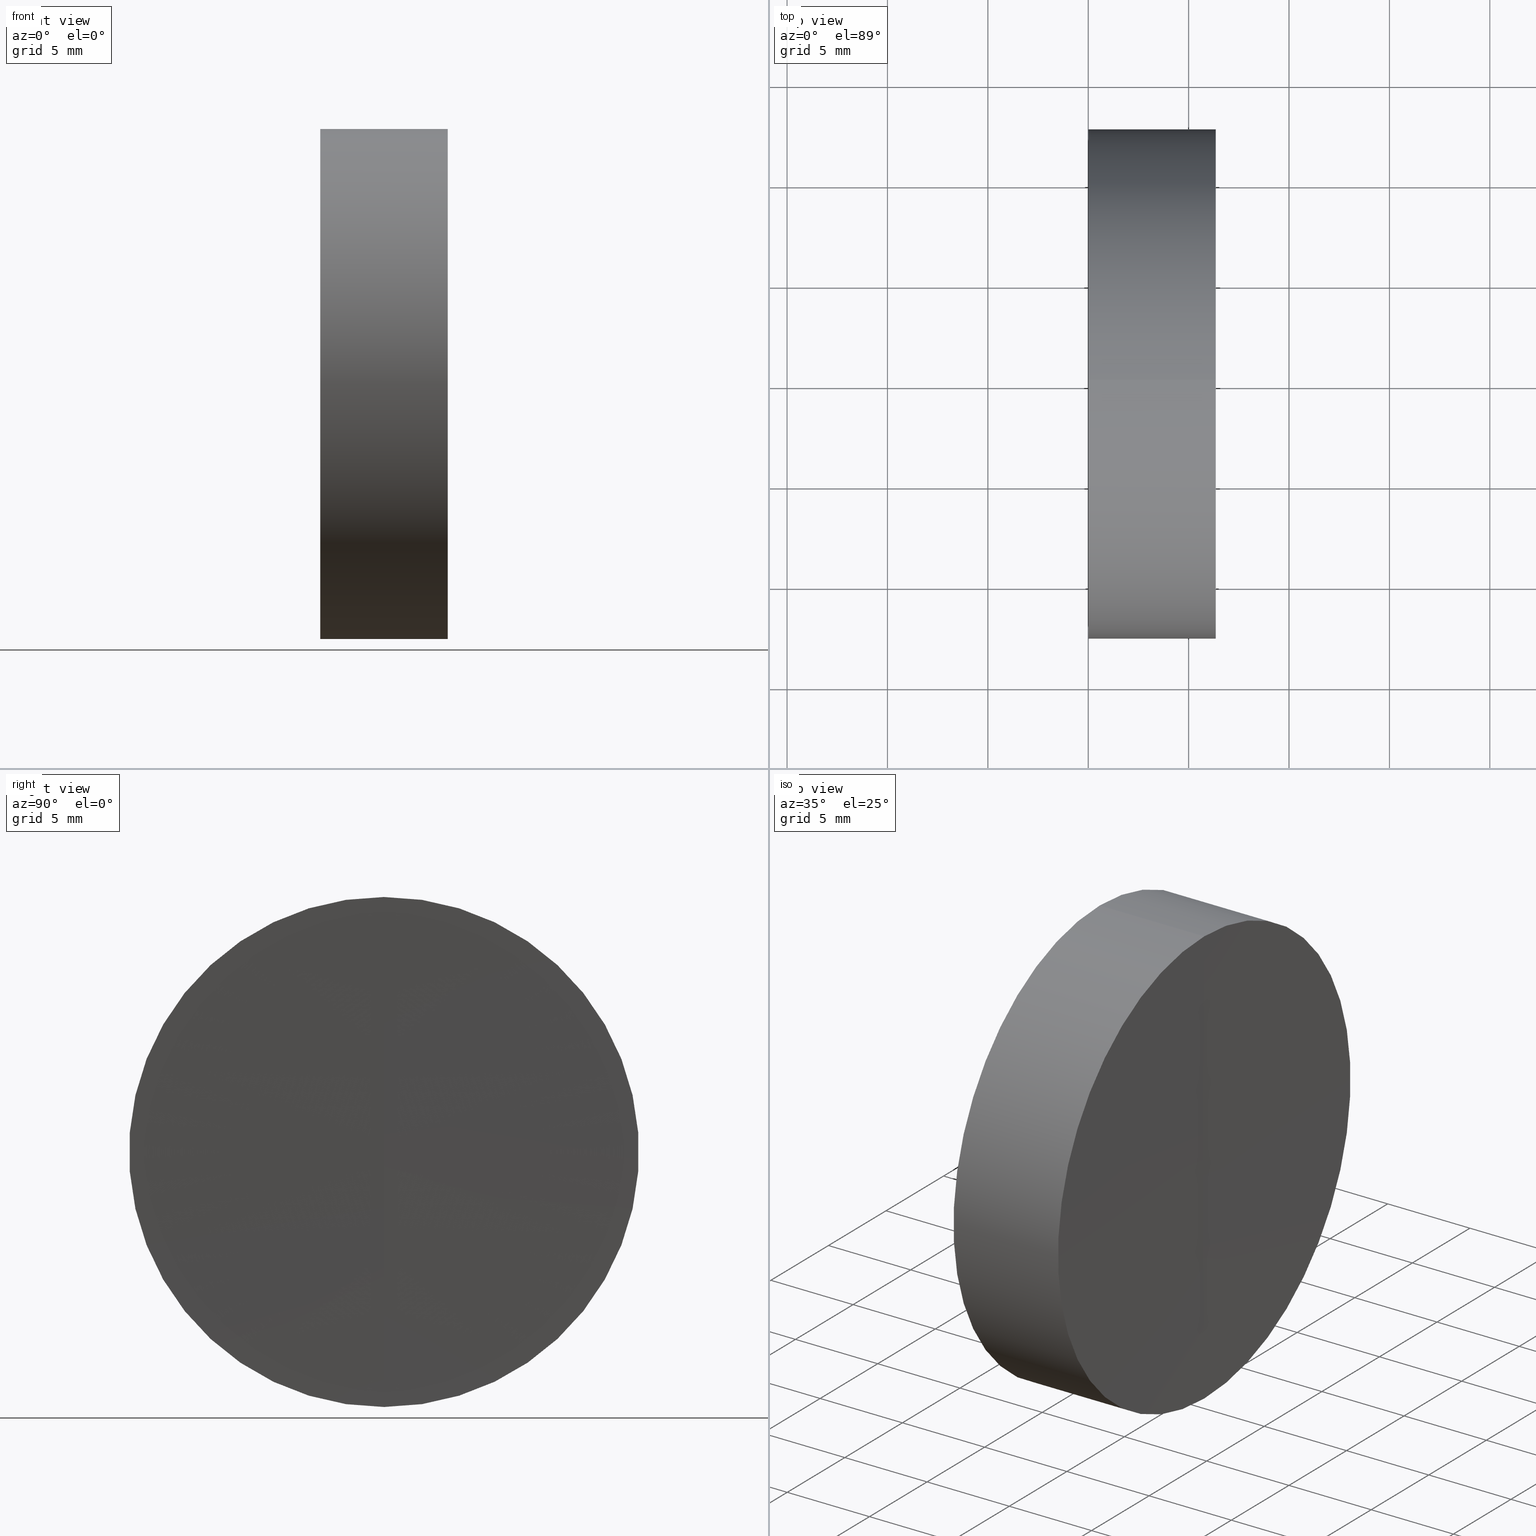
[diagram: canonical four-view strip — front | top / right | iso, engineering-drawing reading convention]
A machine part, canonical four-view strip (front | top / right | iso — engineering-drawing reading convention). The complete STEP part file that produces these views, byte-faithful:
ISO-10303-21;
HEADER;
FILE_DESCRIPTION (( 'STEP AP214' ),
    '1' );
FILE_NAME ('432519.STEP',
    '2019-08-27T01:35:27',
    ( 'user' ),
    ( '΢���й�' ),
    'SwSTEP 2.0',
    'SolidWorks 2016',
    '' );
FILE_SCHEMA (( 'AUTOMOTIVE_DESIGN' ));
ENDSEC;

DATA;
#1 = DIRECTION ( 'NONE',  ( 0.0000000000000000000, 0.0000000000000000000, 1.000000000000000000 ) ) ;
#2 = DIRECTION ( 'NONE',  ( -1.000000000000000000, -0.0000000000000000000, -0.0000000000000000000 ) ) ;
#3 =( LENGTH_UNIT ( ) NAMED_UNIT ( * ) SI_UNIT ( .MILLI., .METRE. ) );
#4 = CARTESIAN_POINT ( 'NONE',  ( 1006.270000000000000, 0.0000000000000000000, 0.0000000000000000000 ) ) ;
#5 = AXIS2_PLACEMENT_3D ( 'NONE', #32, #71, #152 ) ;
#6 = AXIS2_PLACEMENT_3D ( 'NONE', #4, #93, #102 ) ;
#7 = CYLINDRICAL_SURFACE ( 'NONE', #122, 12.70000000000028000 ) ;
#8 = ORIENTED_EDGE ( 'NONE', *, *, #41, .T. ) ;
#9 = PRODUCT_CONTEXT ( 'NONE', #76, 'mechanical' ) ;
#10 =( GEOMETRIC_REPRESENTATION_CONTEXT ( 3 ) GLOBAL_UNCERTAINTY_ASSIGNED_CONTEXT ( ( #109 ) ) GLOBAL_UNIT_ASSIGNED_CONTEXT ( ( #3, #92, #153 ) ) REPRESENTATION_CONTEXT ( 'NONE', 'WORKASPACE' ) );
#11 = SPHERICAL_SURFACE ( 'NONE', #6, 1000.000000000000000 ) ;
#12 = EDGE_LOOP ( 'NONE', ( #44, #53, #117 ) ) ;
#13 = AXIS2_PLACEMENT_3D ( 'NONE', #130, #23, #95 ) ;
#14 = UNCERTAINTY_MEASURE_WITH_UNIT (LENGTH_MEASURE( 1.000000000000000100E-005 ), #36, 'distance_accuracy_value', 'NONE');
#15 = EDGE_CURVE ( 'NONE', #78, #16, #120, .T. ) ;
#16 = VERTEX_POINT ( 'NONE', #60 ) ;
#17 = CARTESIAN_POINT ( 'NONE',  ( 0.0000000000000000000, 0.0000000000000000000, 0.0000000000000000000 ) ) ;
#18 = AXIS2_PLACEMENT_3D ( 'NONE', #123, #42, #110 ) ;
#19 = SURFACE_STYLE_USAGE ( .BOTH. , #48 ) ;
#20 = CARTESIAN_POINT ( 'NONE',  ( 6.350648252070323400, 1.555301434917393800E-015, -12.70000000000208500 ) ) ;
#21 = ORIENTED_EDGE ( 'NONE', *, *, #141, .F. ) ;
#22 = PRODUCT_DEFINITION ( 'δ֪', '', #31, #140 ) ;
#23 = DIRECTION ( 'NONE',  ( 0.0000000000000000000, 0.0000000000000000000, 1.000000000000000000 ) ) ;
#24 =( NAMED_UNIT ( * ) PLANE_ANGLE_UNIT ( ) SI_UNIT ( $, .RADIAN. ) );
#25 = EDGE_CURVE ( 'NONE', #164, #65, #90, .T. ) ;
#26 = MECHANICAL_DESIGN_GEOMETRIC_PRESENTATION_REPRESENTATION (  '', ( #151 ), #10 ) ;
#27 = FACE_OUTER_BOUND ( 'NONE', #80, .T. ) ;
#28 = SURFACE_STYLE_FILL_AREA ( #144 ) ;
#29 = ORIENTED_EDGE ( 'NONE', *, *, #161, .T. ) ;
#30 = CARTESIAN_POINT ( 'NONE',  ( 6.269999999999997800, 0.0000000000000000000, 6.123233995736766200E-014 ) ) ;
#31 = PRODUCT_DEFINITION_FORMATION_WITH_SPECIFIED_SOURCE ( '�κ�', '', #119, .NOT_KNOWN. ) ;
#32 = CARTESIAN_POINT ( 'NONE',  ( 0.0000000000000000000, 0.0000000000000000000, 0.0000000000000000000 ) ) ;
#33 = DIRECTION ( 'NONE',  ( 0.0000000000000000000, 0.0000000000000000000, -1.000000000000000000 ) ) ;
#34 = ORIENTED_EDGE ( 'NONE', *, *, #149, .F. ) ;
#35 = CIRCLE ( 'NONE', #55, 12.69999999999999900 ) ;
#36 =( LENGTH_UNIT ( ) NAMED_UNIT ( * ) SI_UNIT ( .MILLI., .METRE. ) );
#37 =( NAMED_UNIT ( * ) SI_UNIT ( $, .STERADIAN. ) SOLID_ANGLE_UNIT ( ) );
#38 = DIRECTION ( 'NONE',  ( 0.0000000000000000000, 0.0000000000000000000, 1.000000000000000000 ) ) ;
#39 = LINE ( 'NONE', #82, #166 ) ;
#40 = PRODUCT_RELATED_PRODUCT_CATEGORY ( 'part', '', ( #119 ) ) ;
#41 = EDGE_CURVE ( 'NONE', #16, #78, #35, .T. ) ;
#42 = DIRECTION ( 'NONE',  ( -0.0000000000000000000, 1.000000000000000000, 1.224646799147353200E-016 ) ) ;
#43 = CIRCLE ( 'NONE', #73, 12.70000000000056200 ) ;
#44 = ORIENTED_EDGE ( 'NONE', *, *, #161, .F. ) ;
#45 = CARTESIAN_POINT ( 'NONE',  ( 6.350648252070323400, 0.0000000000000000000, 12.70000000000208500 ) ) ;
#46 = AXIS2_PLACEMENT_3D ( 'NONE', #17, #150, #66 ) ;
#47 = ADVANCED_FACE ( 'NONE', ( #27 ), #67, .F. ) ;
#48 = SURFACE_SIDE_STYLE ('',( #142 ) ) ;
#49 = CARTESIAN_POINT ( 'NONE',  ( 6.350648252070323400, 0.0000000000000000000, 0.0000000000000000000 ) ) ;
#50 = ORIENTED_EDGE ( 'NONE', *, *, #15, .T. ) ;
#51 =( LENGTH_UNIT ( ) NAMED_UNIT ( * ) SI_UNIT ( .MILLI., .METRE. ) );
#52 = CARTESIAN_POINT ( 'NONE',  ( 6.350648252070323400, 0.0000000000000000000, 0.0000000000000000000 ) ) ;
#53 = ORIENTED_EDGE ( 'NONE', *, *, #25, .T. ) ;
#54 = EDGE_CURVE ( 'NONE', #87, #65, #159, .T. ) ;
#55 = AXIS2_PLACEMENT_3D ( 'NONE', #89, #165, #79 ) ;
#56 = COLOUR_RGB ( '',1.000000000000000000, 1.000000000000000000, 1.000000000000000000 ) ;
#57 = CLOSED_SHELL ( 'NONE', ( #138, #91, #47, #154, #101 ) ) ;
#58 = ADVANCED_BREP_SHAPE_REPRESENTATION ( '432519', ( #158, #13 ), #157 ) ;
#59 = DIRECTION ( 'NONE',  ( 0.0000000000000000000, -1.000000000000000000, 0.0000000000000000000 ) ) ;
#60 = CARTESIAN_POINT ( 'NONE',  ( 0.0000000000000000000, 0.0000000000000000000, 12.69999999999999900 ) ) ;
#61 = DIRECTION ( 'NONE',  ( -1.000000000000000000, -0.0000000000000000000, -0.0000000000000000000 ) ) ;
#62 = ORIENTED_EDGE ( 'NONE', *, *, #41, .F. ) ;
#63 = AXIS2_PLACEMENT_3D ( 'NONE', #124, #59, #33 ) ;
#64 = SURFACE_SIDE_STYLE ('',( #28 ) ) ;
#65 = VERTEX_POINT ( 'NONE', #30 ) ;
#66 = DIRECTION ( 'NONE',  ( 0.0000000000000000000, 0.0000000000000000000, -1.000000000000000000 ) ) ;
#67 = PLANE ( 'NONE',  #46 ) ;
#68 = FACE_OUTER_BOUND ( 'NONE', #143, .T. ) ;
#69 = DIRECTION ( 'NONE',  ( -1.000000000000000000, -0.0000000000000000000, -0.0000000000000000000 ) ) ;
#70 = DIRECTION ( 'NONE',  ( 0.0000000000000000000, 0.0000000000000000000, 1.000000000000000000 ) ) ;
#71 = DIRECTION ( 'NONE',  ( -1.000000000000000000, -0.0000000000000000000, -0.0000000000000000000 ) ) ;
#72 = DIRECTION ( 'NONE',  ( 0.0000000000000000000, 0.0000000000000000000, 1.000000000000000000 ) ) ;
#73 = AXIS2_PLACEMENT_3D ( 'NONE', #49, #81, #70 ) ;
#74 = FACE_OUTER_BOUND ( 'NONE', #133, .T. ) ;
#75 = SHAPE_DEFINITION_REPRESENTATION ( #163, #58 ) ;
#76 = APPLICATION_CONTEXT ( 'automotive_design' ) ;
#77 = VECTOR ( 'NONE', #105, 1000.000000000000000 ) ;
#78 = VERTEX_POINT ( 'NONE', #137 ) ;
#79 = DIRECTION ( 'NONE',  ( 0.0000000000000000000, 0.0000000000000000000, 1.000000000000000000 ) ) ;
#80 = EDGE_LOOP ( 'NONE', ( #8, #50 ) ) ;
#81 = DIRECTION ( 'NONE',  ( -1.000000000000000000, -0.0000000000000000000, -0.0000000000000000000 ) ) ;
#82 = CARTESIAN_POINT ( 'NONE',  ( 0.0000000000000000000, 1.555301434917172900E-015, -12.70000000000028000 ) ) ;
#83 = ORIENTED_EDGE ( 'NONE', *, *, #121, .T. ) ;
#84 = UNCERTAINTY_MEASURE_WITH_UNIT (LENGTH_MEASURE( 1.000000000000000100E-005 ), #51, 'distance_accuracy_value', 'NONE');
#85 = APPLICATION_CONTEXT ( 'automotive_design' ) ;
#86 = APPLICATION_PROTOCOL_DEFINITION ( 'draft international standard', 'automotive_design', 1998, #76 ) ;
#87 = VERTEX_POINT ( 'NONE', #45 ) ;
#88 = ORIENTED_EDGE ( 'NONE', *, *, #15, .F. ) ;
#89 = CARTESIAN_POINT ( 'NONE',  ( 0.0000000000000000000, 0.0000000000000000000, 0.0000000000000000000 ) ) ;
#90 = CIRCLE ( 'NONE', #18, 1000.000000000000000 ) ;
#91 = ADVANCED_FACE ( 'NONE', ( #128 ), #125, .F. ) ;
#92 =( NAMED_UNIT ( * ) PLANE_ANGLE_UNIT ( ) SI_UNIT ( $, .RADIAN. ) );
#93 = DIRECTION ( 'NONE',  ( 0.0000000000000000000, 1.000000000000000000, 0.0000000000000000000 ) ) ;
#94 = AXIS2_PLACEMENT_3D ( 'NONE', #52, #115, #38 ) ;
#95 = DIRECTION ( 'NONE',  ( 1.000000000000000000, 0.0000000000000000000, 0.0000000000000000000 ) ) ;
#96 =( NAMED_UNIT ( * ) SI_UNIT ( $, .STERADIAN. ) SOLID_ANGLE_UNIT ( ) );
#97 = ORIENTED_EDGE ( 'NONE', *, *, #121, .F. ) ;
#98 = LINE ( 'NONE', #112, #77 ) ;
#99 = AXIS2_PLACEMENT_3D ( 'NONE', #103, #2, #72 ) ;
#100 = COLOUR_RGB ( '',1.000000000000000000, 1.000000000000000000, 1.000000000000000000 ) ;
#101 = ADVANCED_FACE ( 'NONE', ( #68 ), #7, .T. ) ;
#102 = DIRECTION ( 'NONE',  ( 0.0000000000000000000, 0.0000000000000000000, 1.000000000000000000 ) ) ;
#103 = CARTESIAN_POINT ( 'NONE',  ( 0.0000000000000000000, 0.0000000000000000000, 0.0000000000000000000 ) ) ;
#104 = FILL_AREA_STYLE ('',( #126 ) ) ;
#105 = DIRECTION ( 'NONE',  ( -1.000000000000000000, -0.0000000000000000000, -0.0000000000000000000 ) ) ;
#106 = CYLINDRICAL_SURFACE ( 'NONE', #99, 12.70000000000028000 ) ;
#107 = ORIENTED_EDGE ( 'NONE', *, *, #141, .T. ) ;
#108 = EDGE_LOOP ( 'NONE', ( #156, #21, #148 ) ) ;
#109 = UNCERTAINTY_MEASURE_WITH_UNIT (LENGTH_MEASURE( 1.000000000000000100E-005 ), #3, 'distance_accuracy_value', 'NONE');
#110 = DIRECTION ( 'NONE',  ( 0.0000000000000000000, -1.224646799147353200E-016, 1.000000000000000000 ) ) ;
#111 = CARTESIAN_POINT ( 'NONE',  ( 0.0000000000000000000, 0.0000000000000000000, 0.0000000000000000000 ) ) ;
#112 = CARTESIAN_POINT ( 'NONE',  ( 0.0000000000000000000, 0.0000000000000000000, 12.70000000000028000 ) ) ;
#113 = CIRCLE ( 'NONE', #94, 12.70000000000056200 ) ;
#114 =( NAMED_UNIT ( * ) PLANE_ANGLE_UNIT ( ) SI_UNIT ( $, .RADIAN. ) );
#115 = DIRECTION ( 'NONE',  ( -1.000000000000000000, -0.0000000000000000000, -0.0000000000000000000 ) ) ;
#116 = PRESENTATION_STYLE_ASSIGNMENT (( #129 ) ) ;
#117 = ORIENTED_EDGE ( 'NONE', *, *, #54, .F. ) ;
#118 = STYLED_ITEM ( 'NONE', ( #116 ), #58 ) ;
#119 = PRODUCT ( '432519', '432519', '', ( #9 ) ) ;
#120 = CIRCLE ( 'NONE', #5, 12.69999999999999900 ) ;
#121 = EDGE_CURVE ( 'NONE', #164, #78, #39, .T. ) ;
#122 = AXIS2_PLACEMENT_3D ( 'NONE', #111, #61, #155 ) ;
#123 = CARTESIAN_POINT ( 'NONE',  ( 1006.270000000000000, 0.0000000000000000000, 0.0000000000000000000 ) ) ;
#124 = CARTESIAN_POINT ( 'NONE',  ( 1006.270000000000000, 0.0000000000000000000, 0.0000000000000000000 ) ) ;
#125 = SPHERICAL_SURFACE ( 'NONE', #131, 1000.000000000000000 ) ;
#126 = FILL_AREA_STYLE_COLOUR ( '', #100 ) ;
#127 = PRESENTATION_LAYER_ASSIGNMENT (  '', '', ( #118 ) ) ;
#128 = FACE_OUTER_BOUND ( 'NONE', #12, .T. ) ;
#129 = SURFACE_STYLE_USAGE ( .BOTH. , #64 ) ;
#130 = CARTESIAN_POINT ( 'NONE',  ( 0.0000000000000000000, 0.0000000000000000000, 0.0000000000000000000 ) ) ;
#131 = AXIS2_PLACEMENT_3D ( 'NONE', #134, #139, #1 ) ;
#132 = FACE_OUTER_BOUND ( 'NONE', #108, .T. ) ;
#133 = EDGE_LOOP ( 'NONE', ( #107, #83, #62, #34 ) ) ;
#134 = CARTESIAN_POINT ( 'NONE',  ( 1006.270000000000000, 0.0000000000000000000, 0.0000000000000000000 ) ) ;
#135 = MECHANICAL_DESIGN_GEOMETRIC_PRESENTATION_REPRESENTATION (  '', ( #118 ), #147 ) ;
#136 = ORIENTED_EDGE ( 'NONE', *, *, #149, .T. ) ;
#137 = CARTESIAN_POINT ( 'NONE',  ( 0.0000000000000000000, 1.555301434917155600E-015, -12.69999999999999900 ) ) ;
#138 = ADVANCED_FACE ( 'NONE', ( #74 ), #106, .T. ) ;
#139 = DIRECTION ( 'NONE',  ( 0.0000000000000000000, 1.000000000000000000, 0.0000000000000000000 ) ) ;
#140 = PRODUCT_DEFINITION_CONTEXT ( 'detailed design', #85, 'design' ) ;
#141 = EDGE_CURVE ( 'NONE', #87, #164, #43, .T. ) ;
#142 = SURFACE_STYLE_FILL_AREA ( #104 ) ;
#143 = EDGE_LOOP ( 'NONE', ( #97, #29, #136, #88 ) ) ;
#144 = FILL_AREA_STYLE ('',( #145 ) ) ;
#145 = FILL_AREA_STYLE_COLOUR ( '', #56 ) ;
#146 = PRESENTATION_STYLE_ASSIGNMENT (( #19 ) ) ;
#147 =( GEOMETRIC_REPRESENTATION_CONTEXT ( 3 ) GLOBAL_UNCERTAINTY_ASSIGNED_CONTEXT ( ( #84 ) ) GLOBAL_UNIT_ASSIGNED_CONTEXT ( ( #51, #114, #37 ) ) REPRESENTATION_CONTEXT ( 'NONE', 'WORKASPACE' ) );
#148 = ORIENTED_EDGE ( 'NONE', *, *, #54, .T. ) ;
#149 = EDGE_CURVE ( 'NONE', #87, #16, #98, .T. ) ;
#150 = DIRECTION ( 'NONE',  ( 1.000000000000000000, 0.0000000000000000000, 0.0000000000000000000 ) ) ;
#151 = STYLED_ITEM ( 'NONE', ( #146 ), #158 ) ;
#152 = DIRECTION ( 'NONE',  ( 0.0000000000000000000, 0.0000000000000000000, 1.000000000000000000 ) ) ;
#153 =( NAMED_UNIT ( * ) SI_UNIT ( $, .STERADIAN. ) SOLID_ANGLE_UNIT ( ) );
#154 = ADVANCED_FACE ( 'NONE', ( #132 ), #11, .F. ) ;
#155 = DIRECTION ( 'NONE',  ( 0.0000000000000000000, 0.0000000000000000000, 1.000000000000000000 ) ) ;
#156 = ORIENTED_EDGE ( 'NONE', *, *, #25, .F. ) ;
#157 =( GEOMETRIC_REPRESENTATION_CONTEXT ( 3 ) GLOBAL_UNCERTAINTY_ASSIGNED_CONTEXT ( ( #14 ) ) GLOBAL_UNIT_ASSIGNED_CONTEXT ( ( #36, #24, #96 ) ) REPRESENTATION_CONTEXT ( 'NONE', 'WORKASPACE' ) );
#158 = MANIFOLD_SOLID_BREP ( '��ת1', #57 ) ;
#159 = CIRCLE ( 'NONE', #63, 1000.000000000000000 ) ;
#160 = APPLICATION_PROTOCOL_DEFINITION ( 'draft international standard', 'automotive_design', 1998, #85 ) ;
#161 = EDGE_CURVE ( 'NONE', #164, #87, #113, .T. ) ;
#162 = PRESENTATION_LAYER_ASSIGNMENT (  '', '', ( #151 ) ) ;
#163 = PRODUCT_DEFINITION_SHAPE ( 'NONE', 'NONE',  #22 ) ;
#164 = VERTEX_POINT ( 'NONE', #20 ) ;
#165 = DIRECTION ( 'NONE',  ( -1.000000000000000000, -0.0000000000000000000, -0.0000000000000000000 ) ) ;
#166 = VECTOR ( 'NONE', #69, 1000.000000000000000 ) ;
ENDSEC;
END-ISO-10303-21;
